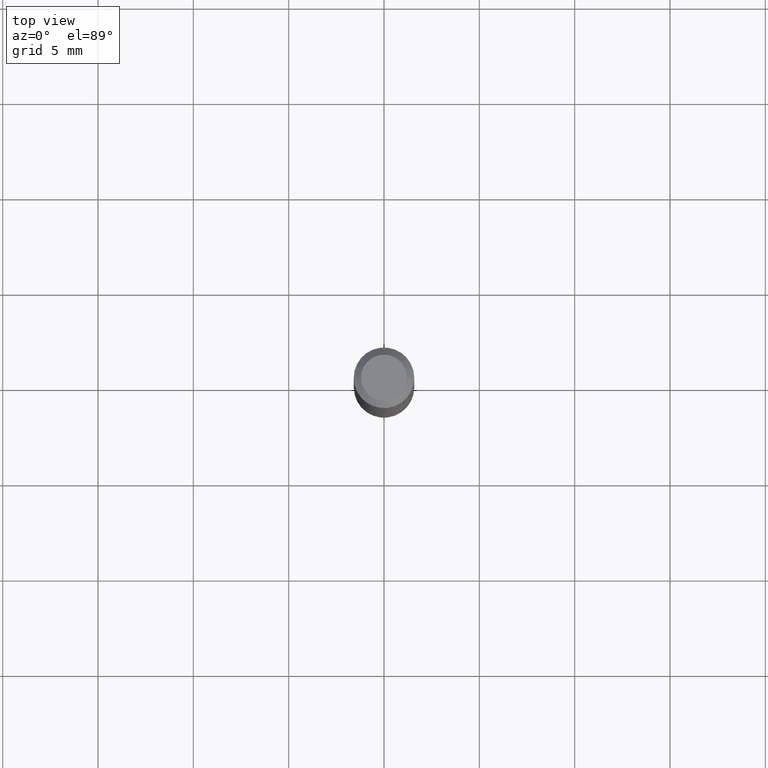
[diagram: clean part render]
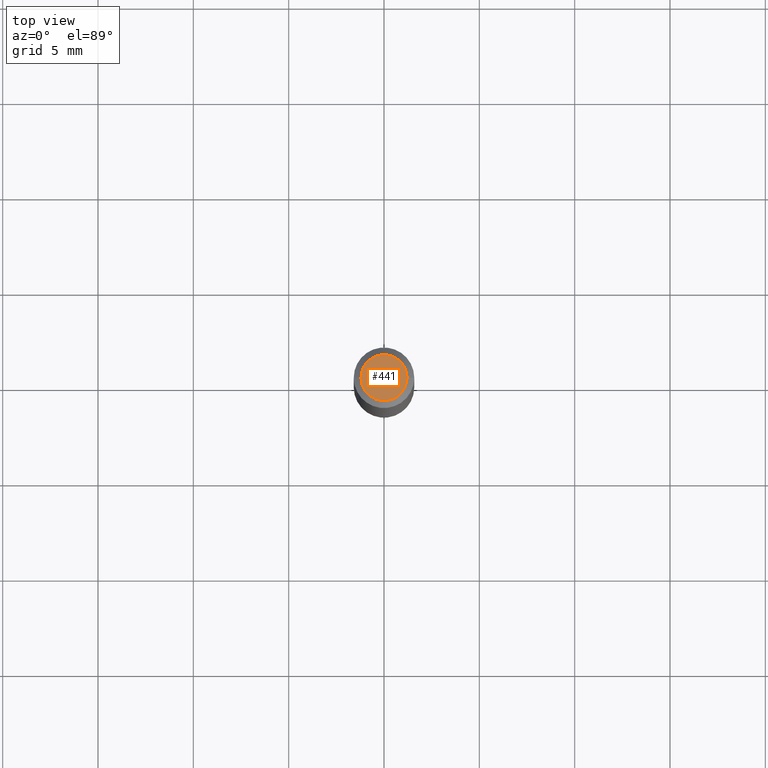
[diagram: same view with one face highlighted and labeled with its STEP entity id]
A machine part, top view. The second image highlights one B-rep face of the part: STEP entity #441.
In plain terms, the highlighted planar face has unit normal (0, -0, -1).
Its self-contained STEP definition (entity closure, byte-faithful):
#56 = DIRECTION ( 'NONE',  ( 1.000000000000000000, -6.982962677686267499E-15, 4.884662768193073002E-29 ) ) ;
#101 = DIRECTION ( 'NONE',  ( 2.438088387897960049E-29, -3.491481338843145188E-15, -1.000000000000000000 ) ) ;
#137 = CARTESIAN_POINT ( 'NONE',  ( 3.316907271900976096E-16, 0.04749999999999999362, -1.224772766956247324E-16 ) ) ;
#139 = CIRCLE ( 'NONE', #284, 0.04749999999999999362 ) ;
#166 = CARTESIAN_POINT ( 'NONE',  ( -2.121106073929386760E-45, 3.028377322213383622E-31, 8.673617379884936499E-17 ) ) ;
#170 = DIRECTION ( 'NONE',  ( -1.000000000000000000, 6.982962677686265922E-15, -4.876176775795935793E-29 ) ) ;
#174 = FACE_OUTER_BOUND ( 'NONE', #242, .T. ) ;
#193 = CARTESIAN_POINT ( 'NONE',  ( 0.04749999999999999362, -4.035134999187577144E-16, 8.673617379885194112E-17 ) ) ;
#195 = DIRECTION ( 'NONE',  ( -2.445468806185136597E-29, 3.491481338843145583E-15, 1.000000000000000000 ) ) ;
#197 = DIRECTION ( 'NONE',  ( -2.445468806185136597E-29, 3.491481338843145583E-15, 1.000000000000000000 ) ) ;
#215 = CIRCLE ( 'NONE', #267, 0.04749999999999999362 ) ;
#219 = EDGE_CURVE ( 'NONE', #460, #306, #215, .T. ) ;
#242 = EDGE_LOOP ( 'NONE', ( #274, #272 ) ) ;
#246 = PLANE ( 'NONE',  #310 ) ;
#251 = EDGE_CURVE ( 'NONE', #306, #460, #139, .T. ) ;
#267 = AXIS2_PLACEMENT_3D ( 'NONE', #166, #197, #56 ) ;
#272 = ORIENTED_EDGE ( 'NONE', *, *, #251, .T. ) ;
#274 = ORIENTED_EDGE ( 'NONE', *, *, #219, .T. ) ;
#284 = AXIS2_PLACEMENT_3D ( 'NONE', #369, #195, #411 ) ;
#306 = VERTEX_POINT ( 'NONE', #193 ) ;
#310 = AXIS2_PLACEMENT_3D ( 'NONE', #137, #101, #170 ) ;
#369 = CARTESIAN_POINT ( 'NONE',  ( -2.121106073929386760E-45, 3.028377322213383622E-31, 8.673617379884936499E-17 ) ) ;
#388 = CARTESIAN_POINT ( 'NONE',  ( -0.04749999999999999362, 3.578768372314211985E-16, 8.673617379884694910E-17 ) ) ;
#411 = DIRECTION ( 'NONE',  ( 1.000000000000000000, -6.982962677686267499E-15, 4.884662768193073002E-29 ) ) ;
#441 = ADVANCED_FACE ( 'NONE', ( #174 ), #246, .F. ) ;
#460 = VERTEX_POINT ( 'NONE', #388 ) ;